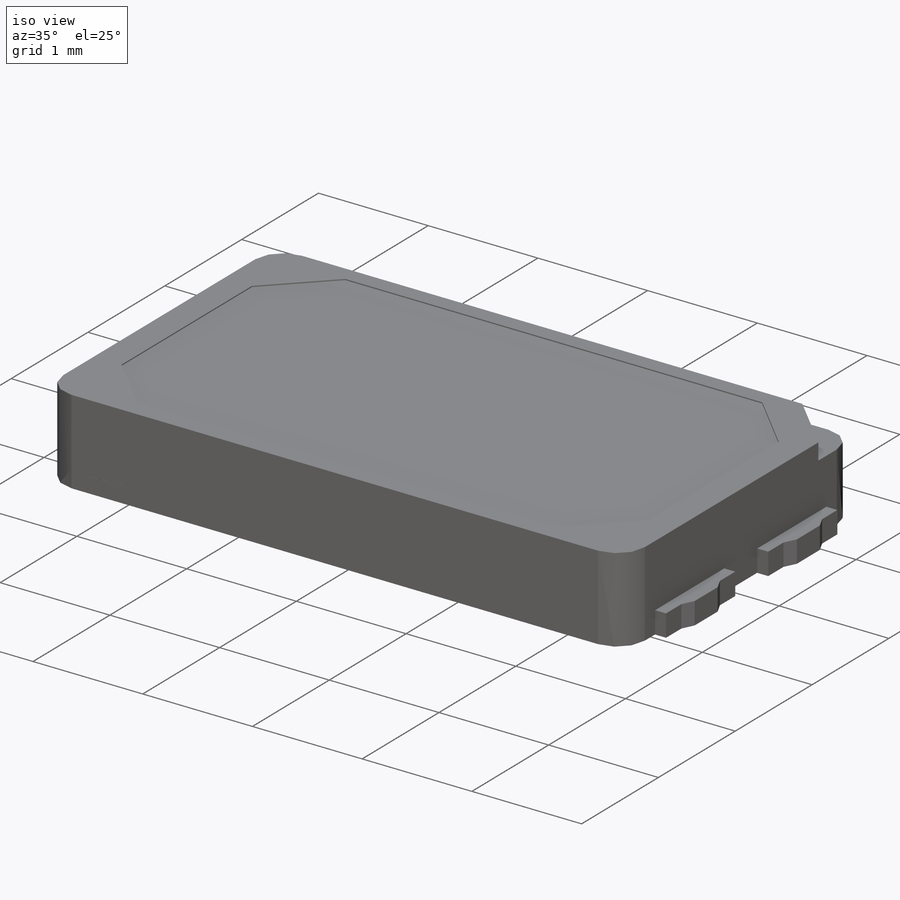
[diagram: iso view]
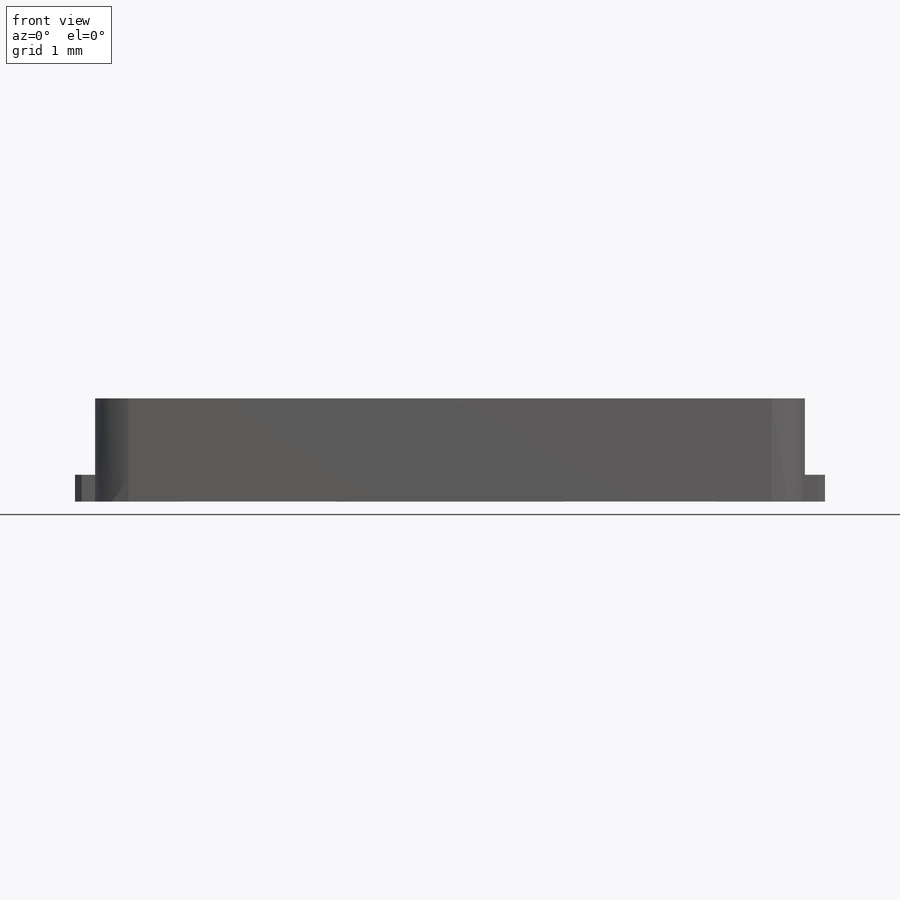
[diagram: front view]
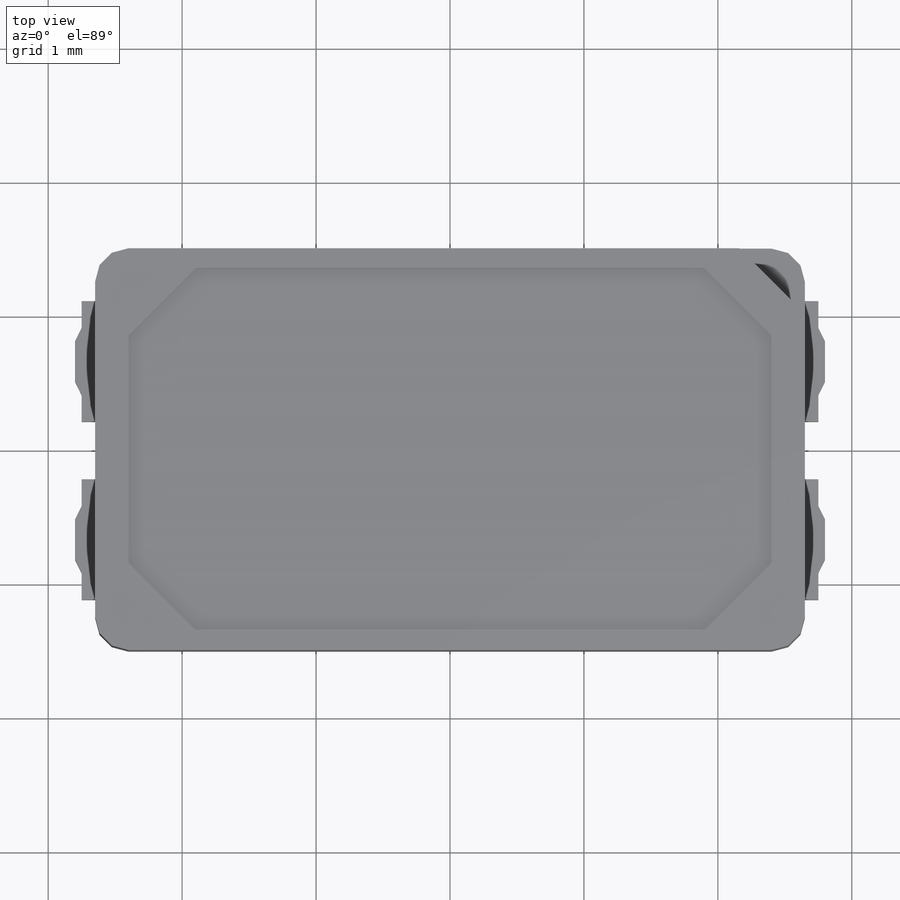
[diagram: top view]
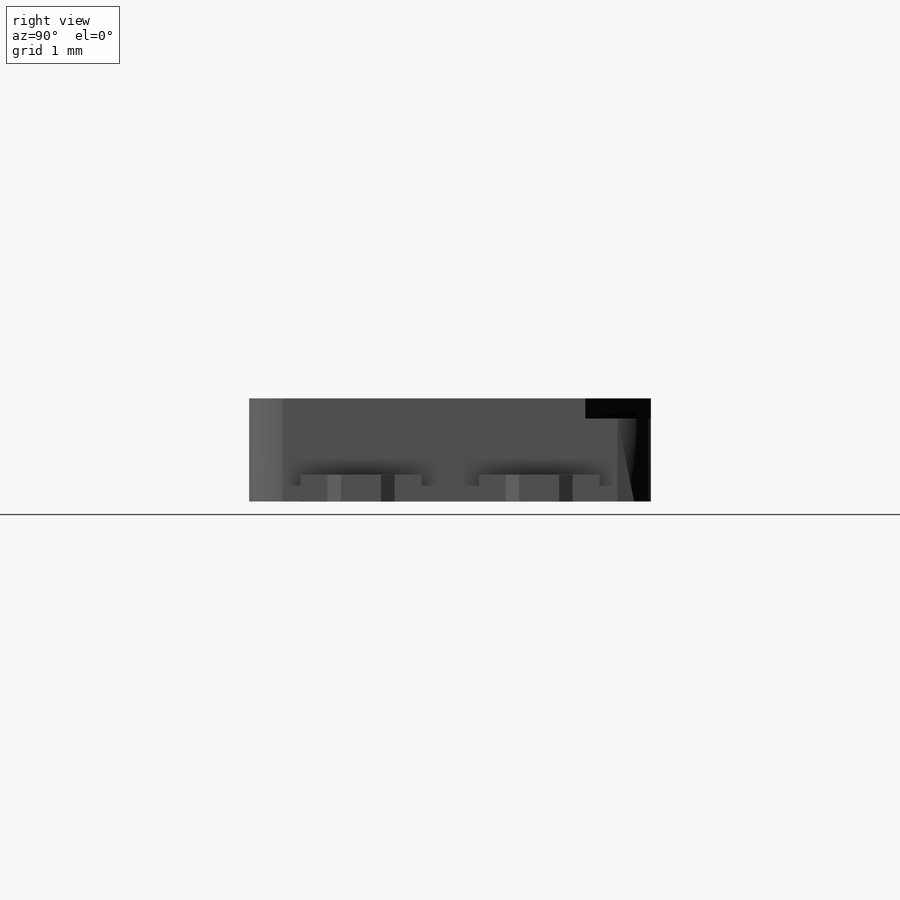
[diagram: right view]
SOLIDWORKS PART (.sldprt)
format: sldprt  version: not decoded by parser v0  size: 578,560 bytes
history: native  units: mm
features: sketch x6, extrude x3, cut_extrude x3, material x1, fillet x1 (+11 scaffold rows collapsed)
feature tree (25):
  scaffold x11  (default folders/planes/origin — collapsed)
  material  "Material <not specified>"
  sketch  "Sketch1"  dims[D1=5.3mm D2=3.0mm]
  extrude  "Extrude1"  Depth=0.77mm
  sketch  "Sketch2"  dims[D1=4.8mm D2=2.7mm D3=0.5mm D4=0.5mm D5=0.5mm D6=0.5mm]
  cut_extrude  "Cut-Extrude1"  Depth=0.01mm
  cut_extrude  "Cut-Extrude2"  [1 undecoded]
  sketch  "Sketch2<3>"  dims[D1=0.15mm]
  fillet  "Fillet2"  Radius=0.25mm
  sketch  "Sketch3"  dims[c1.D3=0.1mm c1.D1=1.7mm c1.D2=1.25mm c1.D4=0.9mm c1.D5=0.8mm c1.D6=5.6mm c1.D7=0.43mm c1.D8=~0.161523mm c2.D8=120.0deg c2.D9=0.3mm c2.D10=0.05mm]
  extrude  "Extrude2"  Depth=0.2mm
  extrude  "Extrude3"  [1 undecoded]
  sketch  "Sketch3<3>"  dims[D1=0.001mm]
  sketch  "Sketch4"
  cut_extrude  "Cut-Extrude3"  Depth=0.001mm
decode coverage: 10 of 13 modeling features carry decoded parameters
note: ~ marks probable driven/reference dimensions
note: 2 parameter values undecoded
note: suppression state not decoded; provenance and decode notes live in map.json
